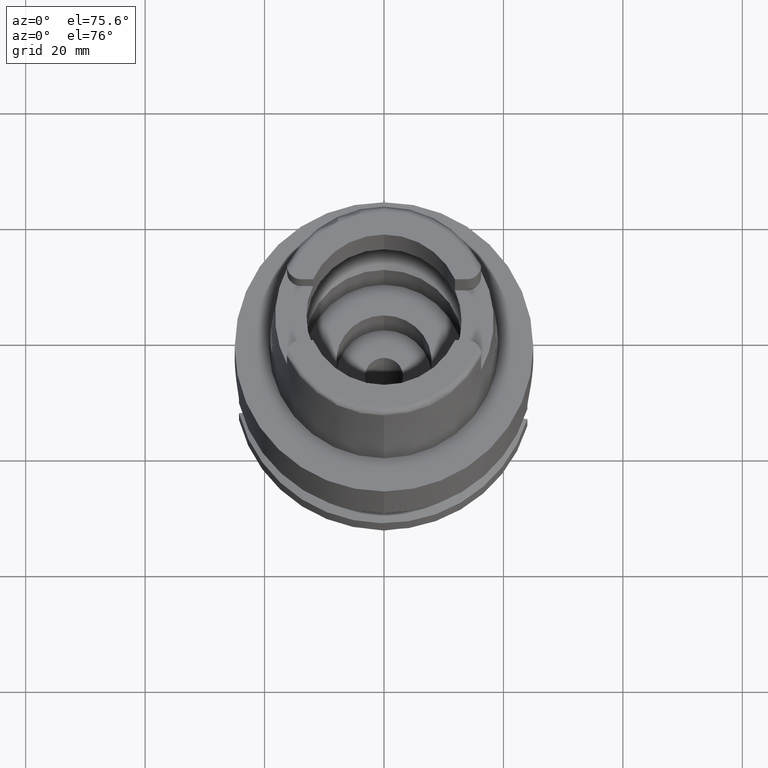
[diagram: clean part render]
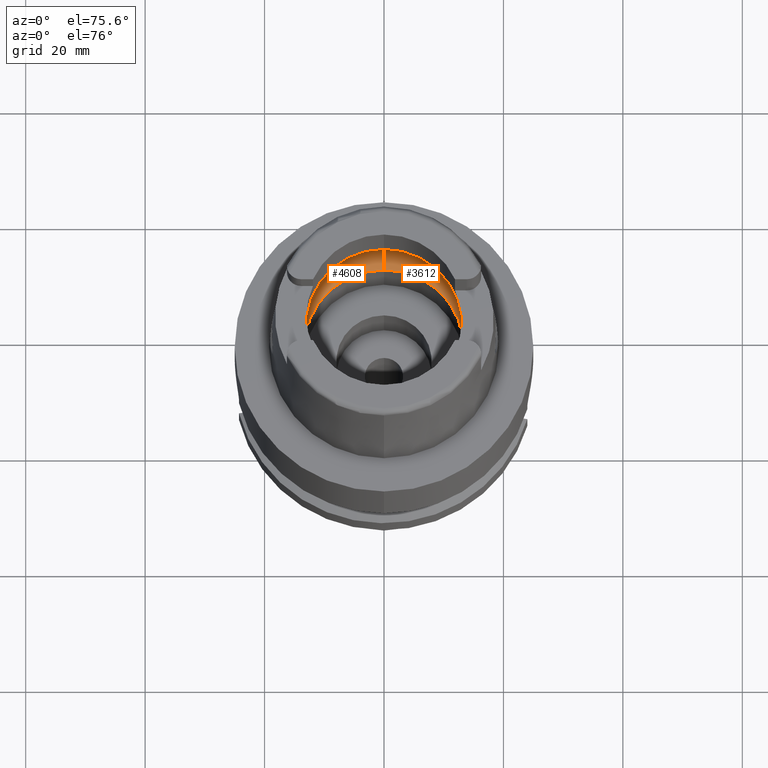
[diagram: same view with one multi-face feature highlighted, each face labeled with its STEP entity id]
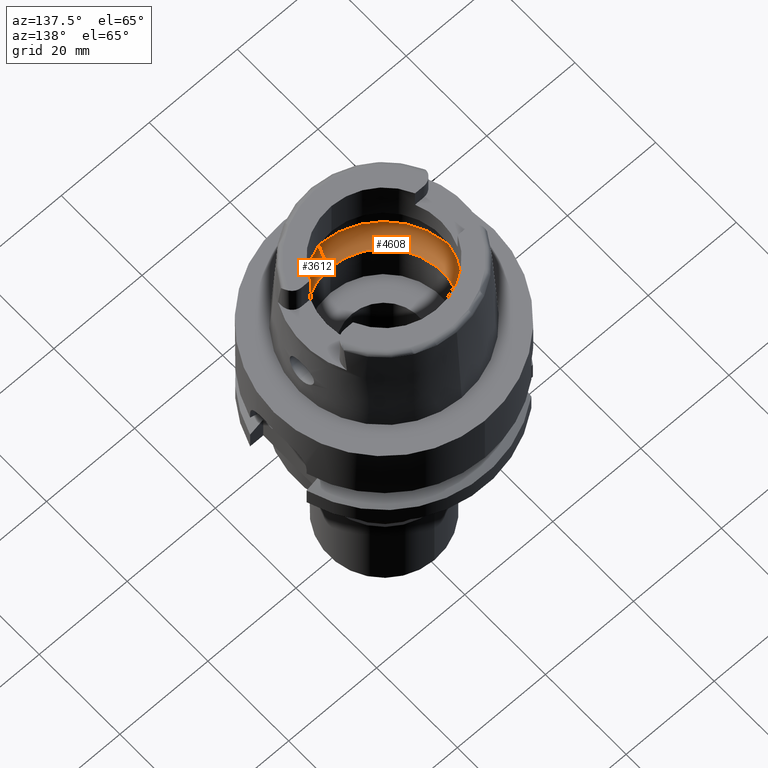
[diagram: same view with one multi-face feature highlighted, each face labeled with its STEP entity id]
A machine part, auxiliary view. The highlighted faces form ONE feature: a constant-radius fillet chain: 2 tangent blend faces with common blend radius 6 mm. The faces share edges in the B-rep.
A second angle (auxiliary view) of the same feature is appended — it is thin or edge-on in the first view.
Their STEP definitions:
[1] entity #3612 (Torus):
#48 = DIRECTION ( 'NONE',  ( 0.0000000000000000000, 1.000000000000000000, 0.0000000000000000000 ) ) ;
#99 = EDGE_CURVE ( 'NONE', #860, #684, #3793, .T. ) ;
#110 = FACE_OUTER_BOUND ( 'NONE', #694, .T. ) ;
#261 = EDGE_CURVE ( 'NONE', #1717, #2975, #2549, .T. ) ;
#262 = CARTESIAN_POINT ( 'NONE',  ( 15.90436354886000103, -1.746774199932999982, 5.060987926546999915 ) ) ;
#339 = CIRCLE ( 'NONE', #3450, 16.00000000000000355 ) ;
#390 = DIRECTION ( 'NONE',  ( 0.0000000000000000000, -0.5500000000000007105, -0.8351646544245028281 ) ) ;
#495 = EDGE_CURVE ( 'NONE', #2975, #969, #871, .T. ) ;
#533 = CARTESIAN_POINT ( 'NONE',  ( 0.0000000000000000000, 0.0000000000000000000, 5.060987926546999915 ) ) ;
#578 = CARTESIAN_POINT ( 'NONE',  ( 15.97371681168999835, 0.0000000000000000000, 4.500000000000000000 ) ) ;
#593 = CARTESIAN_POINT ( 'NONE',  ( 0.0000000000000000000, 10.00000000000000000, 5.060987926546999915 ) ) ;
#597 = ORIENTED_EDGE ( 'NONE', *, *, #1816, .F. ) ;
#684 = VERTEX_POINT ( 'NONE', #5403 ) ;
#694 = EDGE_LOOP ( 'NONE', ( #3465, #3032, #5255, #3971, #3060, #597, #3590 ) ) ;
#705 = CARTESIAN_POINT ( 'NONE',  ( 15.94481961884416599, -1.284363903411000596, 4.771085202065872721 ) ) ;
#860 = VERTEX_POINT ( 'NONE', #1912 ) ;
#871 = B_SPLINE_CURVE_WITH_KNOTS ( 'NONE', 3,
 ( #5046, #5490, #1239, #5079, #2140, #2970 ),
 .UNSPECIFIED., .F., .F.,
 ( 4, 2, 4 ),
 ( 0.0000000000000000000, 0.5000000000000000000, 1.000000000000000000 ),
 .UNSPECIFIED. ) ;
#969 = VERTEX_POINT ( 'NONE', #578 ) ;
#985 = DIRECTION ( 'NONE',  ( 0.9940227218040297297, -0.1091733874958031730, 0.0000000000000000000 ) ) ;
#1239 = CARTESIAN_POINT ( 'NONE',  ( 15.94481961884416954, 1.284363903373195281, 4.771085202048084284 ) ) ;
#1257 = DIRECTION ( 'NONE',  ( 0.0000000000000000000, 0.0000000000000000000, -1.000000000000000000 ) ) ;
#1324 = CARTESIAN_POINT ( 'NONE',  ( 0.0000000000000000000, -16.00000000000000000, 5.060987926546999915 ) ) ;
#1562 = DIRECTION ( 'NONE',  ( 1.000000000000000000, 0.0000000000000000000, 0.0000000000000000000 ) ) ;
#1580 = CIRCLE ( 'NONE', #3891, 5.999999999999993783 ) ;
#1642 = DIRECTION ( 'NONE',  ( 0.0000000000000000000, -1.000000000000000000, 0.0000000000000000000 ) ) ;
#1698 = DIRECTION ( 'NONE',  ( 0.0000000000000000000, 1.000000000000000000, 0.0000000000000000000 ) ) ;
#1717 = VERTEX_POINT ( 'NONE', #4633 ) ;
#1816 = EDGE_CURVE ( 'NONE', #4106, #5124, #339, .T. ) ;
#1848 = EDGE_CURVE ( 'NONE', #684, #1717, #1580, .T. ) ;
#1912 = CARTESIAN_POINT ( 'NONE',  ( 0.0000000000000000000, -13.29999999999999893, 0.04999999999997999794 ) ) ;
#2013 = CARTESIAN_POINT ( 'NONE',  ( 15.96793737312083472, -0.6977532816171033714, 4.565769782590064274 ) ) ;
#2140 = CARTESIAN_POINT ( 'NONE',  ( 15.97371681168999835, 0.3626031211644606955, 4.500000000000000888 ) ) ;
#2267 = DIRECTION ( 'NONE',  ( 0.0000000000000000000, 0.0000000000000000000, -1.000000000000000000 ) ) ;
#2448 = CARTESIAN_POINT ( 'NONE',  ( 0.0000000000000000000, 0.0000000000000000000, 0.04999999999997999794 ) ) ;
#2549 = CIRCLE ( 'NONE', #4496, 16.00000000000000000 ) ;
#2585 = CARTESIAN_POINT ( 'NONE',  ( 0.0000000000000000000, 0.0000000000000000000, 5.060987926546999915 ) ) ;
#2920 = TOROIDAL_SURFACE ( 'NONE', #4148, 10.00000000000000000, 6.000000000000000000 ) ;
#2970 = CARTESIAN_POINT ( 'NONE',  ( 15.97371681168999835, 0.0000000000000000000, 4.500000000000000000 ) ) ;
#2975 = VERTEX_POINT ( 'NONE', #4383 ) ;
#3032 = ORIENTED_EDGE ( 'NONE', *, *, #261, .F. ) ;
#3060 = ORIENTED_EDGE ( 'NONE', *, *, #4611, .T. ) ;
#3192 = AXIS2_PLACEMENT_3D ( 'NONE', #3842, #3366, #390 ) ;
#3296 = CARTESIAN_POINT ( 'NONE',  ( 15.97371681169000190, -0.3626031211921638686, 4.500000000000000000 ) ) ;
#3366 = DIRECTION ( 'NONE',  ( -1.000000000000000000, 0.0000000000000000000, 0.0000000000000000000 ) ) ;
#3369 = CIRCLE ( 'NONE', #3192, 5.999999999999993783 ) ;
#3450 = AXIS2_PLACEMENT_3D ( 'NONE', #4355, #2267, #985 ) ;
#3465 = ORIENTED_EDGE ( 'NONE', *, *, #495, .F. ) ;
#3590 = ORIENTED_EDGE ( 'NONE', *, *, #5468, .F. ) ;
#3612 = ADVANCED_FACE ( 'NONE', ( #110 ), #2920, .F. ) ;
#3678 = CARTESIAN_POINT ( 'NONE',  ( 15.97371681168999835, 0.0000000000000000000, 4.500000000000000000 ) ) ;
#3793 = CIRCLE ( 'NONE', #4232, 13.29999999999999893 ) ;
#3842 = CARTESIAN_POINT ( 'NONE',  ( 0.0000000000000000000, -10.00000000000000000, 5.060987926546999915 ) ) ;
#3891 = AXIS2_PLACEMENT_3D ( 'NONE', #593, #1562, #3961 ) ;
#3961 = DIRECTION ( 'NONE',  ( 0.0000000000000000000, 0.5500000000000007105, -0.8351646544245028281 ) ) ;
#3971 = ORIENTED_EDGE ( 'NONE', *, *, #99, .F. ) ;
#4106 = VERTEX_POINT ( 'NONE', #262 ) ;
#4148 = AXIS2_PLACEMENT_3D ( 'NONE', #2585, #4279, #48 ) ;
#4232 = AXIS2_PLACEMENT_3D ( 'NONE', #2448, #5371, #1642 ) ;
#4279 = DIRECTION ( 'NONE',  ( 0.0000000000000000000, 0.0000000000000000000, 1.000000000000000000 ) ) ;
#4355 = CARTESIAN_POINT ( 'NONE',  ( 0.0000000000000000000, 0.0000000000000000000, 5.060987926546999915 ) ) ;
#4383 = CARTESIAN_POINT ( 'NONE',  ( 15.90436354886000103, 1.746774199932999982, 5.060987926546999915 ) ) ;
#4496 = AXIS2_PLACEMENT_3D ( 'NONE', #533, #1257, #1698 ) ;
#4541 = CARTESIAN_POINT ( 'NONE',  ( 15.92748130313666266, -1.536287252994779751, 4.910241166276443359 ) ) ;
#4611 = EDGE_CURVE ( 'NONE', #860, #5124, #3369, .T. ) ;
#4633 = CARTESIAN_POINT ( 'NONE',  ( 0.0000000000000000000, 16.00000000000000000, 5.060987926546999915 ) ) ;
#4992 = B_SPLINE_CURVE_WITH_KNOTS ( 'NONE', 3,
 ( #3678, #3296, #2013, #705, #4541, #5375 ),
 .UNSPECIFIED., .F., .F.,
 ( 4, 2, 4 ),
 ( 0.0000000000000000000, 0.5000000000000000000, 1.000000000000000000 ),
 .UNSPECIFIED. ) ;
#5046 = CARTESIAN_POINT ( 'NONE',  ( 15.90436354886000103, 1.746774199932999982, 5.060987926546999915 ) ) ;
#5079 = CARTESIAN_POINT ( 'NONE',  ( 15.96793737312082406, 0.6977532815764533325, 4.565769782580398228 ) ) ;
#5124 = VERTEX_POINT ( 'NONE', #1324 ) ;
#5255 = ORIENTED_EDGE ( 'NONE', *, *, #1848, .F. ) ;
#5371 = DIRECTION ( 'NONE',  ( 0.0000000000000000000, 0.0000000000000000000, 1.000000000000000000 ) ) ;
#5375 = CARTESIAN_POINT ( 'NONE',  ( 15.90436354886000103, -1.746774199932999982, 5.060987926546999915 ) ) ;
#5403 = CARTESIAN_POINT ( 'NONE',  ( 0.0000000000000000000, 13.29999999999999893, 0.04999999999997999794 ) ) ;
#5468 = EDGE_CURVE ( 'NONE', #969, #4106, #4992, .T. ) ;
#5490 = CARTESIAN_POINT ( 'NONE',  ( 15.92748130313666266, 1.536287252972255990, 4.910241166260312262 ) ) ;
[2] entity #4608 (Torus):
#139 = DIRECTION ( 'NONE',  ( 0.0000000000000000000, -1.000000000000000000, 0.0000000000000000000 ) ) ;
#241 = CARTESIAN_POINT ( 'NONE',  ( -15.92748130313666799, 1.536287252947671211, 4.910241166242705013 ) ) ;
#390 = DIRECTION ( 'NONE',  ( 0.0000000000000000000, -0.5500000000000007105, -0.8351646544245028281 ) ) ;
#485 = ORIENTED_EDGE ( 'NONE', *, *, #4471, .F. ) ;
#575 = CARTESIAN_POINT ( 'NONE',  ( -15.97371681168999835, 0.3626031211342209404, 4.500000000000000000 ) ) ;
#593 = CARTESIAN_POINT ( 'NONE',  ( 0.0000000000000000000, 10.00000000000000000, 5.060987926546999915 ) ) ;
#609 = TOROIDAL_SURFACE ( 'NONE', #1590, 10.00000000000000000, 6.000000000000000000 ) ;
#684 = VERTEX_POINT ( 'NONE', #5403 ) ;
#778 = B_SPLINE_CURVE_WITH_KNOTS ( 'NONE', 3,
 ( #3144, #575, #3970, #1494, #241, #2274 ),
 .UNSPECIFIED., .F., .F.,
 ( 4, 2, 4 ),
 ( 0.0000000000000000000, 0.5000000000000000000, 1.000000000000000000 ),
 .UNSPECIFIED. ) ;
#860 = VERTEX_POINT ( 'NONE', #1912 ) ;
#873 = EDGE_LOOP ( 'NONE', ( #1248, #4376, #1737, #4474, #485, #2194, #1530 ) ) ;
#916 = VERTEX_POINT ( 'NONE', #3229 ) ;
#1088 = CARTESIAN_POINT ( 'NONE',  ( 0.0000000000000000000, 0.0000000000000000000, 5.060987926546999915 ) ) ;
#1159 = CARTESIAN_POINT ( 'NONE',  ( -15.97371681168999835, 0.0000000000000000000, 4.500000000000000000 ) ) ;
#1248 = ORIENTED_EDGE ( 'NONE', *, *, #4748, .F. ) ;
#1254 = FACE_OUTER_BOUND ( 'NONE', #873, .T. ) ;
#1324 = CARTESIAN_POINT ( 'NONE',  ( 0.0000000000000000000, -16.00000000000000000, 5.060987926546999915 ) ) ;
#1430 = EDGE_CURVE ( 'NONE', #684, #860, #2030, .T. ) ;
#1494 = CARTESIAN_POINT ( 'NONE',  ( -15.94481961884416599, 1.284363903331934509, 4.771085202028663375 ) ) ;
#1518 = EDGE_CURVE ( 'NONE', #1911, #3850, #5331, .T. ) ;
#1530 = ORIENTED_EDGE ( 'NONE', *, *, #1518, .F. ) ;
#1562 = DIRECTION ( 'NONE',  ( 1.000000000000000000, 0.0000000000000000000, 0.0000000000000000000 ) ) ;
#1573 = CARTESIAN_POINT ( 'NONE',  ( -15.97371681168999835, -0.3626031211644242247, 4.499999999999999112 ) ) ;
#1580 = CIRCLE ( 'NONE', #3891, 5.999999999999993783 ) ;
#1590 = AXIS2_PLACEMENT_3D ( 'NONE', #2926, #4617, #3451 ) ;
#1659 = CARTESIAN_POINT ( 'NONE',  ( -15.92748130313666799, -1.536287252972227124, 4.910241166260291834 ) ) ;
#1717 = VERTEX_POINT ( 'NONE', #4633 ) ;
#1737 = ORIENTED_EDGE ( 'NONE', *, *, #1430, .F. ) ;
#1848 = EDGE_CURVE ( 'NONE', #684, #1717, #1580, .T. ) ;
#1864 = DIRECTION ( 'NONE',  ( 0.0000000000000000000, 0.0000000000000000000, -1.000000000000000000 ) ) ;
#1911 = VERTEX_POINT ( 'NONE', #2426 ) ;
#1912 = CARTESIAN_POINT ( 'NONE',  ( 0.0000000000000000000, -13.29999999999999893, 0.04999999999997999794 ) ) ;
#2030 = CIRCLE ( 'NONE', #2737, 13.29999999999999893 ) ;
#2069 = DIRECTION ( 'NONE',  ( -0.9940227218040297297, 0.1091733874958031730, 0.0000000000000000000 ) ) ;
#2084 = DIRECTION ( 'NONE',  ( 0.0000000000000000000, 1.000000000000000000, 0.0000000000000000000 ) ) ;
#2194 = ORIENTED_EDGE ( 'NONE', *, *, #3394, .F. ) ;
#2274 = CARTESIAN_POINT ( 'NONE',  ( -15.90436354886000103, 1.746774199932999982, 5.060987926546999915 ) ) ;
#2426 = CARTESIAN_POINT ( 'NONE',  ( -15.90436354886000103, -1.746774199932999982, 5.060987926546999915 ) ) ;
#2737 = AXIS2_PLACEMENT_3D ( 'NONE', #5020, #2831, #2084 ) ;
#2750 = CIRCLE ( 'NONE', #3817, 16.00000000000000355 ) ;
#2831 = DIRECTION ( 'NONE',  ( 0.0000000000000000000, 0.0000000000000000000, 1.000000000000000000 ) ) ;
#2926 = CARTESIAN_POINT ( 'NONE',  ( 0.0000000000000000000, 0.0000000000000000000, 5.060987926546999915 ) ) ;
#3064 = CARTESIAN_POINT ( 'NONE',  ( 0.0000000000000000000, 0.0000000000000000000, 5.060987926546999915 ) ) ;
#3144 = CARTESIAN_POINT ( 'NONE',  ( -15.97371681168999835, 0.0000000000000000000, 4.500000000000000000 ) ) ;
#3192 = AXIS2_PLACEMENT_3D ( 'NONE', #3842, #3366, #390 ) ;
#3229 = CARTESIAN_POINT ( 'NONE',  ( -15.90436354886000103, 1.746774199932999982, 5.060987926546999915 ) ) ;
#3243 = CARTESIAN_POINT ( 'NONE',  ( -15.94481961884416954, -1.284363903373151983, 4.771085202048062079 ) ) ;
#3366 = DIRECTION ( 'NONE',  ( -1.000000000000000000, 0.0000000000000000000, 0.0000000000000000000 ) ) ;
#3369 = CIRCLE ( 'NONE', #3192, 5.999999999999993783 ) ;
#3394 = EDGE_CURVE ( 'NONE', #3850, #916, #778, .T. ) ;
#3451 = DIRECTION ( 'NONE',  ( 0.0000000000000000000, 1.000000000000000000, 0.0000000000000000000 ) ) ;
#3546 = CIRCLE ( 'NONE', #4691, 16.00000000000000000 ) ;
#3686 = CARTESIAN_POINT ( 'NONE',  ( -15.90436354886000103, -1.746774199932999982, 5.060987926546999915 ) ) ;
#3798 = CARTESIAN_POINT ( 'NONE',  ( -15.97371681168999835, 0.0000000000000000000, 4.500000000000000000 ) ) ;
#3817 = AXIS2_PLACEMENT_3D ( 'NONE', #1088, #4221, #2069 ) ;
#3842 = CARTESIAN_POINT ( 'NONE',  ( 0.0000000000000000000, -10.00000000000000000, 5.060987926546999915 ) ) ;
#3850 = VERTEX_POINT ( 'NONE', #3798 ) ;
#3891 = AXIS2_PLACEMENT_3D ( 'NONE', #593, #1562, #3961 ) ;
#3961 = DIRECTION ( 'NONE',  ( 0.0000000000000000000, 0.5500000000000007105, -0.8351646544245028281 ) ) ;
#3970 = CARTESIAN_POINT ( 'NONE',  ( -15.96793737312083827, 0.6977532815320883763, 4.565769782569849333 ) ) ;
#4221 = DIRECTION ( 'NONE',  ( 0.0000000000000000000, 0.0000000000000000000, -1.000000000000000000 ) ) ;
#4376 = ORIENTED_EDGE ( 'NONE', *, *, #4611, .F. ) ;
#4471 = EDGE_CURVE ( 'NONE', #916, #1717, #2750, .T. ) ;
#4474 = ORIENTED_EDGE ( 'NONE', *, *, #1848, .T. ) ;
#4608 = ADVANCED_FACE ( 'NONE', ( #1254 ), #609, .F. ) ;
#4611 = EDGE_CURVE ( 'NONE', #860, #5124, #3369, .T. ) ;
#4617 = DIRECTION ( 'NONE',  ( 0.0000000000000000000, 0.0000000000000000000, 1.000000000000000000 ) ) ;
#4633 = CARTESIAN_POINT ( 'NONE',  ( 0.0000000000000000000, 16.00000000000000000, 5.060987926546999915 ) ) ;
#4691 = AXIS2_PLACEMENT_3D ( 'NONE', #3064, #1864, #139 ) ;
#4748 = EDGE_CURVE ( 'NONE', #5124, #1911, #3546, .T. ) ;
#5020 = CARTESIAN_POINT ( 'NONE',  ( 0.0000000000000000000, 0.0000000000000000000, 0.04999999999997999794 ) ) ;
#5124 = VERTEX_POINT ( 'NONE', #1324 ) ;
#5331 = B_SPLINE_CURVE_WITH_KNOTS ( 'NONE', 3,
 ( #3686, #1659, #3243, #5380, #1573, #1159 ),
 .UNSPECIFIED., .F., .F.,
 ( 4, 2, 4 ),
 ( 0.0000000000000000000, 0.5000000000000000000, 1.000000000000000000 ),
 .UNSPECIFIED. ) ;
#5380 = CARTESIAN_POINT ( 'NONE',  ( -15.96793737312083472, -0.6977532815764048157, 4.565769782580386682 ) ) ;
#5403 = CARTESIAN_POINT ( 'NONE',  ( 0.0000000000000000000, 13.29999999999999893, 0.04999999999997999794 ) ) ;